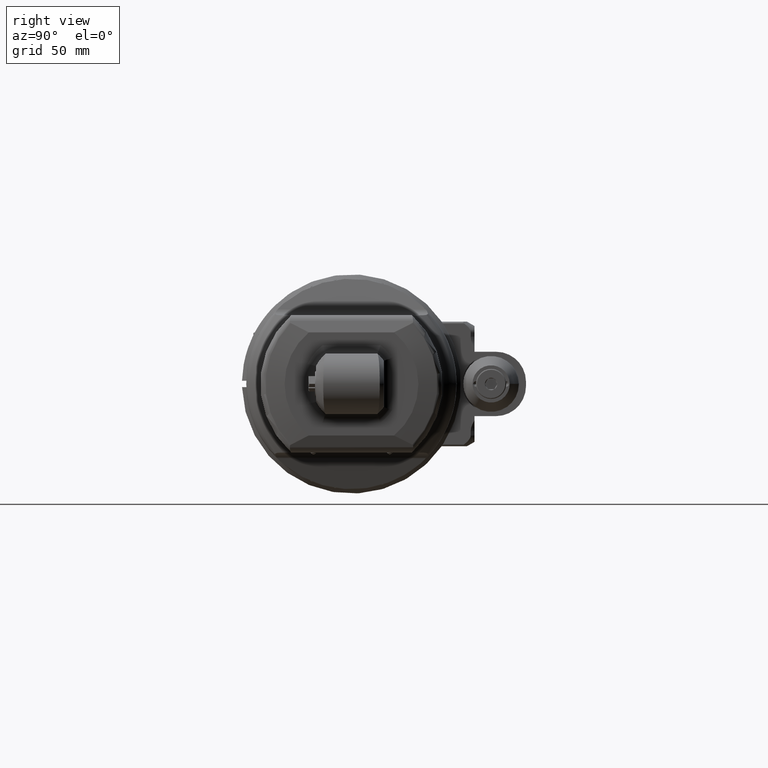
[diagram: clean part render]
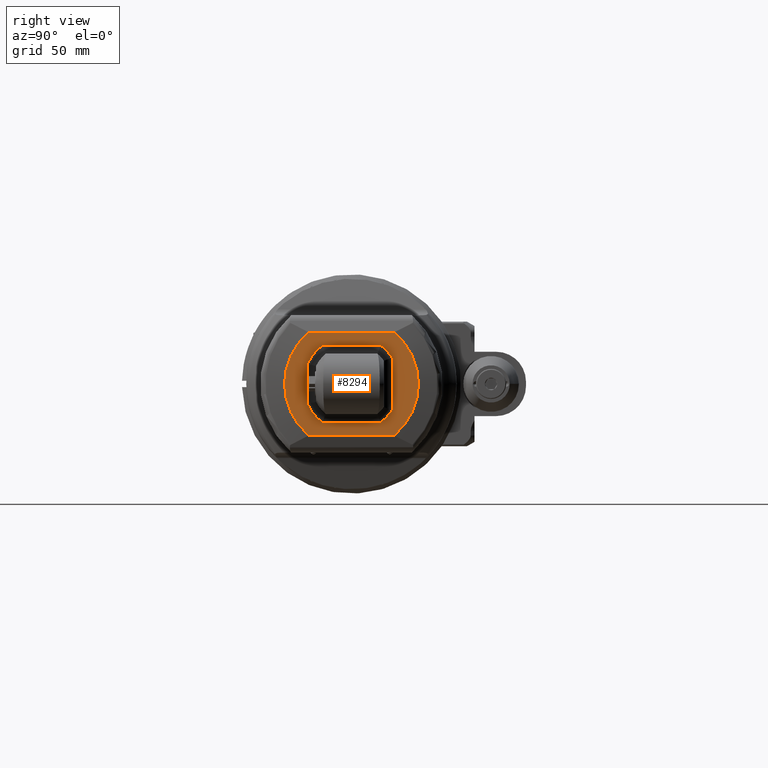
[diagram: same view with one face highlighted and labeled with its STEP entity id]
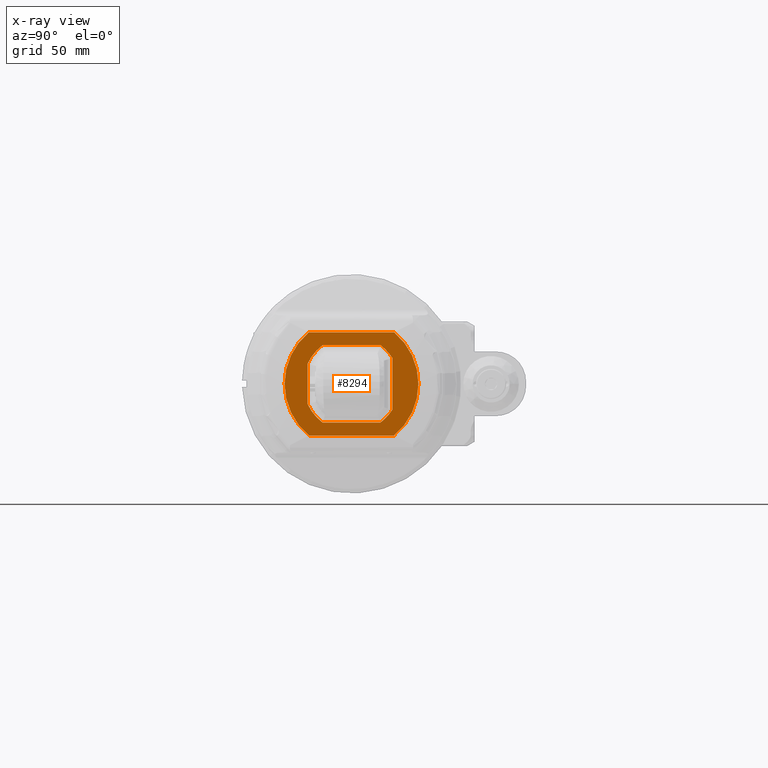
[diagram: x-ray of the same camera — body ghosted, the highlighted face saturated]
A machine part, right view. The second image highlights one B-rep face of the part: STEP entity #8294.
The next image is the same camera in x-ray: the body ghosted, the highlighted face saturated — about 0% of this face is hidden behind the body in this view.
In plain terms, the highlighted planar face has unit normal (-1, -0, 0).
Its self-contained STEP definition (entity closure, byte-faithful):
#139=FACE_BOUND('',#1495,.T.);
#451=PLANE('',#9107);
#954=FACE_OUTER_BOUND('',#1494,.T.);
#1494=EDGE_LOOP('',(#7102,#7103,#7104,#7105));
#1495=EDGE_LOOP('',(#7106,#7107,#7108,#7109,#7110,#7111,#7112,#7113));
#1900=CIRCLE('',#9085,0.885826771653543);
#1904=CIRCLE('',#9095,0.885826771653543);
#1909=CIRCLE('',#9105,0.885826771653543);
#1910=CIRCLE('',#9108,1.22667072286457);
#1911=CIRCLE('',#9109,1.22667072286457);
#1912=CIRCLE('',#9110,0.885826771653543);
#2555=LINE('',#44605,#3137);
#2557=LINE('',#44646,#3139);
#2558=LINE('',#44650,#3140);
#2559=LINE('',#44654,#3141);
#2560=LINE('',#44657,#3142);
#2561=LINE('',#44660,#3143);
#3137=VECTOR('',#10965,0.730206180747638);
#3139=VECTOR('',#10987,1.06299212598425);
#3140=VECTOR('',#10990,1.56354492538898);
#3141=VECTOR('',#10993,1.56354492538898);
#3142=VECTOR('',#10996,1.06299212598425);
#3143=VECTOR('',#10999,0.948974078204331);
#3878=VERTEX_POINT('',#44454);
#3879=VERTEX_POINT('',#44471);
#3894=VERTEX_POINT('',#44572);
#3895=VERTEX_POINT('',#44585);
#3897=VERTEX_POINT('',#44604);
#3900=VERTEX_POINT('',#44631);
#3901=VERTEX_POINT('',#44648);
#3902=VERTEX_POINT('',#44649);
#3903=VERTEX_POINT('',#44651);
#3904=VERTEX_POINT('',#44653);
#3905=VERTEX_POINT('',#44656);
#3906=VERTEX_POINT('',#44658);
#4974=EDGE_CURVE('',#3879,#3878,#1900,.T.);
#4996=EDGE_CURVE('',#3895,#3894,#1904,.T.);
#4999=EDGE_CURVE('',#3895,#3897,#2555,.T.);
#5006=EDGE_CURVE('',#3900,#3897,#1909,.T.);
#5008=EDGE_CURVE('',#3900,#3878,#2557,.T.);
#5009=EDGE_CURVE('',#3901,#3902,#2558,.T.);
#5010=EDGE_CURVE('',#3901,#3903,#1910,.T.);
#5011=EDGE_CURVE('',#3904,#3903,#2559,.T.);
#5012=EDGE_CURVE('',#3904,#3902,#1911,.T.);
#5013=EDGE_CURVE('',#3905,#3894,#2560,.T.);
#5014=EDGE_CURVE('',#3905,#3906,#1912,.T.);
#5015=EDGE_CURVE('',#3879,#3906,#2561,.T.);
#7102=ORIENTED_EDGE('',*,*,#5009,.F.);
#7103=ORIENTED_EDGE('',*,*,#5010,.T.);
#7104=ORIENTED_EDGE('',*,*,#5011,.F.);
#7105=ORIENTED_EDGE('',*,*,#5012,.T.);
#7106=ORIENTED_EDGE('',*,*,#5008,.F.);
#7107=ORIENTED_EDGE('',*,*,#5006,.T.);
#7108=ORIENTED_EDGE('',*,*,#4999,.F.);
#7109=ORIENTED_EDGE('',*,*,#4996,.T.);
#7110=ORIENTED_EDGE('',*,*,#5013,.F.);
#7111=ORIENTED_EDGE('',*,*,#5014,.T.);
#7112=ORIENTED_EDGE('',*,*,#5015,.F.);
#7113=ORIENTED_EDGE('',*,*,#4974,.T.);
#8294=ADVANCED_FACE('',(#954,#139),#451,.F.);
#9085=AXIS2_PLACEMENT_3D('',#44472,#10930,#10931);
#9095=AXIS2_PLACEMENT_3D('',#44586,#10960,#10961);
#9105=AXIS2_PLACEMENT_3D('',#44632,#10983,#10984);
#9107=AXIS2_PLACEMENT_3D('',#44647,#10988,#10989);
#9108=AXIS2_PLACEMENT_3D('',#44652,#10991,#10992);
#9109=AXIS2_PLACEMENT_3D('',#44655,#10994,#10995);
#9110=AXIS2_PLACEMENT_3D('',#44659,#10997,#10998);
#10930=DIRECTION('center_axis',(-1.,0.,0.));
#10931=DIRECTION('ref_axis',(0.,0.844444444444421,-0.535643146364213));
#10960=DIRECTION('center_axis',(-1.,0.,0.));
#10961=DIRECTION('ref_axis',(0.,-0.911111111111121,0.41216082202201));
#10965=DIRECTION('',(0.,0.,-1.));
#10983=DIRECTION('center_axis',(-1.,0.,0.));
#10984=DIRECTION('ref_axis',(0.,-0.6,-0.8));
#10987=DIRECTION('',(0.,1.,0.));
#10988=DIRECTION('center_axis',(-1.,0.,0.));
#10989=DIRECTION('ref_axis',(0.,1.,0.));
#10990=DIRECTION('',(0.,-1.,0.));
#10991=DIRECTION('center_axis',(1.,0.,0.));
#10992=DIRECTION('ref_axis',(0.,0.63731240024112,-0.770605544035924));
#10993=DIRECTION('',(0.,1.,0.));
#10994=DIRECTION('center_axis',(1.,0.,0.));
#10995=DIRECTION('ref_axis',(0.,-0.637312400241179,0.770605544035875));
#10996=DIRECTION('',(0.,-1.,0.));
#10997=DIRECTION('center_axis',(-1.,0.,0.));
#10998=DIRECTION('ref_axis',(0.,0.6,0.8));
#10999=DIRECTION('',(0.,0.,1.));
#44454=CARTESIAN_POINT('',(3.18897637795276,0.531496062992126,-0.708661417322835));
#44471=CARTESIAN_POINT('',(3.18897637795276,0.748031496062992,-0.474487039101968));
#44472=CARTESIAN_POINT('Origin',(3.18897637795276,0.,-1.28530475983346E-15));
#44572=CARTESIAN_POINT('',(3.18897637795276,-0.531496062992126,0.708661417322835));
#44585=CARTESIAN_POINT('',(3.18897637795276,-0.807086614173228,0.365103090373858));
#44586=CARTESIAN_POINT('Origin',(3.18897637795276,0.,-1.28530475983346E-15));
#44604=CARTESIAN_POINT('',(3.18897637795276,-0.807086614173228,-0.365103090373858));
#44605=CARTESIAN_POINT('',(3.18897637795276,-0.807086614173228,0.365103090373858));
#44631=CARTESIAN_POINT('',(3.18897637795276,-0.531496062992126,-0.708661417322835));
#44632=CARTESIAN_POINT('Origin',(3.18897637795276,0.,-1.28530475983346E-15));
#44646=CARTESIAN_POINT('',(3.18897637795276,-0.531496062992126,-0.708661417322835));
#44647=CARTESIAN_POINT('Origin',(3.18897637795276,-2.00787401574803,-1.7565326542563));
#44648=CARTESIAN_POINT('',(3.18897637795276,0.781772462694488,-0.945279259746063));
#44649=CARTESIAN_POINT('',(3.18897637795276,-0.781772462694488,-0.945279259746063));
#44650=CARTESIAN_POINT('',(3.18897637795276,0.781772462694488,-0.945279259746063));
#44651=CARTESIAN_POINT('',(3.18897637795276,0.781772462694488,0.945279259746063));
#44652=CARTESIAN_POINT('Origin',(3.18897637795276,0.,0.));
#44653=CARTESIAN_POINT('',(3.18897637795276,-0.781772462694488,0.945279259746063));
#44654=CARTESIAN_POINT('',(3.18897637795276,-0.781772462694488,0.945279259746063));
#44655=CARTESIAN_POINT('Origin',(3.18897637795276,0.,0.));
#44656=CARTESIAN_POINT('',(3.18897637795276,0.531496062992126,0.708661417322835));
#44657=CARTESIAN_POINT('',(3.18897637795276,0.531496062992126,0.708661417322835));
#44658=CARTESIAN_POINT('',(3.18897637795276,0.748031496062992,0.474487039101968));
#44659=CARTESIAN_POINT('Origin',(3.18897637795276,0.,-1.28530475983346E-15));
#44660=CARTESIAN_POINT('',(3.18897637795276,0.748031496062992,-0.474487039101968));